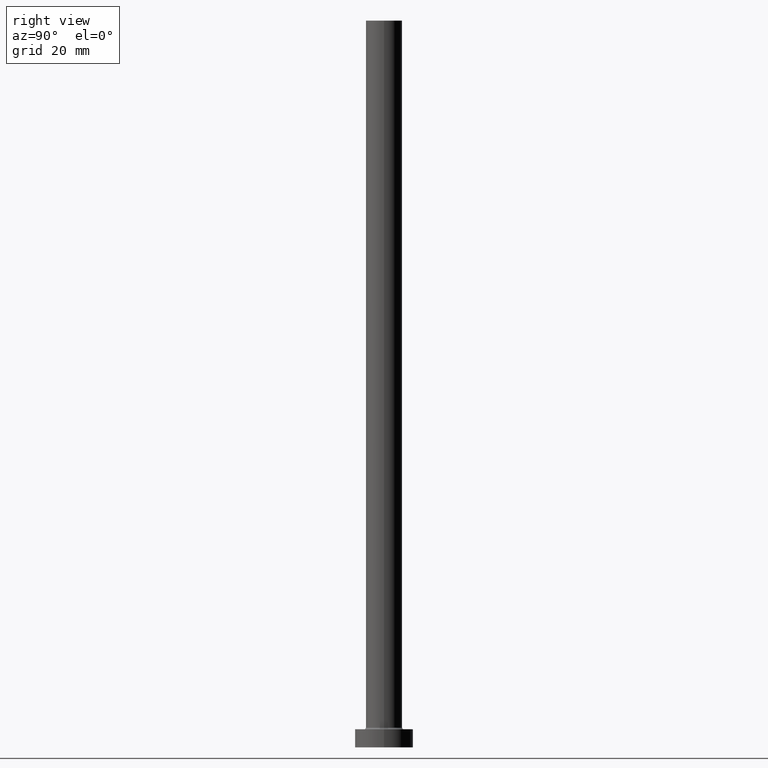
[diagram: clean part render]
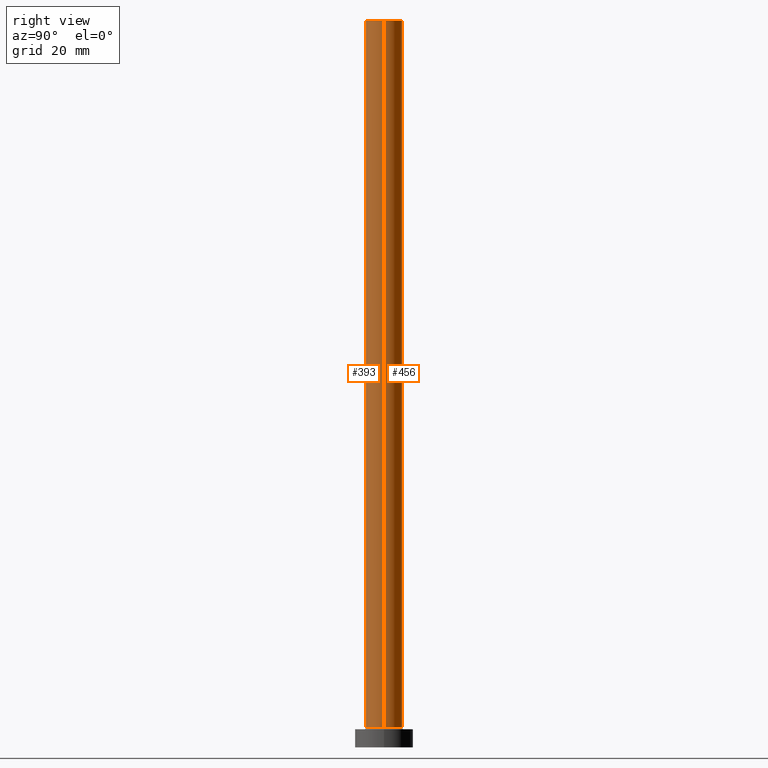
[diagram: same view with one multi-face feature highlighted, each face labeled with its STEP entity id]
A machine part, right view. The highlighted faces form ONE feature: a constant-radius fillet chain: 2 tangent blend faces with common blend radius 5 mm. The faces share edges in the B-rep.
Their STEP definitions:
[1] entity #456 (Cylinder):
#6 = EDGE_LOOP ( 'NONE', ( #119, #329, #144, #199 ) ) ;
#14 = EDGE_CURVE ( 'NONE', #397, #252, #40, .T. ) ;
#26 = LINE ( 'NONE', #163, #302 ) ;
#40 = CIRCLE ( 'NONE', #123, 5.000000000000000000 ) ;
#99 = VECTOR ( 'NONE', #368, 1000.000000000000000 ) ;
#119 = ORIENTED_EDGE ( 'NONE', *, *, #14, .F. ) ;
#123 = AXIS2_PLACEMENT_3D ( 'NONE', #128, #406, #409 ) ;
#127 = CARTESIAN_POINT ( 'NONE',  ( 0.000000000000000000, 0.000000000000000000, 200.0000000000000000 ) ) ;
#128 = CARTESIAN_POINT ( 'NONE',  ( 0.000000000000000000, 0.000000000000000000, 200.0000000000000000 ) ) ;
#129 = DIRECTION ( 'NONE',  ( -0.000000000000000000, -0.000000000000000000, -1.000000000000000000 ) ) ;
#136 = EDGE_CURVE ( 'NONE', #397, #427, #26, .T. ) ;
#144 = ORIENTED_EDGE ( 'NONE', *, *, #237, .T. ) ;
#145 = CARTESIAN_POINT ( 'NONE',  ( -5.000000000000000000, 0.000000000000000000, 200.0000000000000000 ) ) ;
#159 = CARTESIAN_POINT ( 'NONE',  ( 5.000000000000000000, 6.123233995736766282E-16, 5.500000000000005329 ) ) ;
#163 = CARTESIAN_POINT ( 'NONE',  ( 5.000000000000000000, 6.123233995736766282E-16, 200.0000000000000000 ) ) ;
#188 = CARTESIAN_POINT ( 'NONE',  ( 5.000000000000000000, 6.123233995736766282E-16, 200.0000000000000000 ) ) ;
#191 = AXIS2_PLACEMENT_3D ( 'NONE', #248, #328, #430 ) ;
#195 = CYLINDRICAL_SURFACE ( 'NONE', #379, 5.000000000000000000 ) ;
#199 = ORIENTED_EDGE ( 'NONE', *, *, #293, .F. ) ;
#236 = DIRECTION ( 'NONE',  ( -0.000000000000000000, -0.000000000000000000, -1.000000000000000000 ) ) ;
#237 = EDGE_CURVE ( 'NONE', #427, #246, #279, .T. ) ;
#246 = VERTEX_POINT ( 'NONE', #330 ) ;
#248 = CARTESIAN_POINT ( 'NONE',  ( 0.000000000000000000, 0.000000000000000000, 5.500000000000005329 ) ) ;
#252 = VERTEX_POINT ( 'NONE', #253 ) ;
#253 = CARTESIAN_POINT ( 'NONE',  ( -5.000000000000000000, 0.000000000000000000, 200.0000000000000000 ) ) ;
#269 = DIRECTION ( 'NONE',  ( -1.000000000000000000, 0.000000000000000000, 0.000000000000000000 ) ) ;
#279 = CIRCLE ( 'NONE', #191, 5.000000000000000000 ) ;
#293 = EDGE_CURVE ( 'NONE', #252, #246, #433, .T. ) ;
#302 = VECTOR ( 'NONE', #236, 1000.000000000000000 ) ;
#328 = DIRECTION ( 'NONE',  ( 0.000000000000000000, 0.000000000000000000, 1.000000000000000000 ) ) ;
#329 = ORIENTED_EDGE ( 'NONE', *, *, #136, .T. ) ;
#330 = CARTESIAN_POINT ( 'NONE',  ( -5.000000000000000000, 0.000000000000000000, 5.500000000000005329 ) ) ;
#368 = DIRECTION ( 'NONE',  ( -0.000000000000000000, -0.000000000000000000, -1.000000000000000000 ) ) ;
#379 = AXIS2_PLACEMENT_3D ( 'NONE', #127, #129, #269 ) ;
#397 = VERTEX_POINT ( 'NONE', #188 ) ;
#406 = DIRECTION ( 'NONE',  ( 0.000000000000000000, 0.000000000000000000, 1.000000000000000000 ) ) ;
#409 = DIRECTION ( 'NONE',  ( 1.000000000000000000, 0.000000000000000000, 0.000000000000000000 ) ) ;
#427 = VERTEX_POINT ( 'NONE', #159 ) ;
#430 = DIRECTION ( 'NONE',  ( 1.000000000000000000, 0.000000000000000000, 0.000000000000000000 ) ) ;
#433 = LINE ( 'NONE', #145, #99 ) ;
#448 = FACE_OUTER_BOUND ( 'NONE', #6, .T. ) ;
#456 = ADVANCED_FACE ( 'NONE', ( #448 ), #195, .T. ) ;
[2] entity #393 (Cylinder):
#26 = LINE ( 'NONE', #163, #302 ) ;
#28 = EDGE_CURVE ( 'NONE', #252, #397, #157, .T. ) ;
#33 = AXIS2_PLACEMENT_3D ( 'NONE', #307, #345, #56 ) ;
#34 = ORIENTED_EDGE ( 'NONE', *, *, #28, .F. ) ;
#35 = ORIENTED_EDGE ( 'NONE', *, *, #421, .T. ) ;
#50 = AXIS2_PLACEMENT_3D ( 'NONE', #231, #162, #270 ) ;
#54 = DIRECTION ( 'NONE',  ( -1.000000000000000000, 0.000000000000000000, 0.000000000000000000 ) ) ;
#56 = DIRECTION ( 'NONE',  ( 1.000000000000000000, 0.000000000000000000, 0.000000000000000000 ) ) ;
#95 = CYLINDRICAL_SURFACE ( 'NONE', #214, 5.000000000000000000 ) ;
#99 = VECTOR ( 'NONE', #368, 1000.000000000000000 ) ;
#110 = ORIENTED_EDGE ( 'NONE', *, *, #293, .T. ) ;
#136 = EDGE_CURVE ( 'NONE', #397, #427, #26, .T. ) ;
#145 = CARTESIAN_POINT ( 'NONE',  ( -5.000000000000000000, 0.000000000000000000, 200.0000000000000000 ) ) ;
#157 = CIRCLE ( 'NONE', #50, 5.000000000000000000 ) ;
#159 = CARTESIAN_POINT ( 'NONE',  ( 5.000000000000000000, 6.123233995736766282E-16, 5.500000000000005329 ) ) ;
#162 = DIRECTION ( 'NONE',  ( 0.000000000000000000, 0.000000000000000000, 1.000000000000000000 ) ) ;
#163 = CARTESIAN_POINT ( 'NONE',  ( 5.000000000000000000, 6.123233995736766282E-16, 200.0000000000000000 ) ) ;
#188 = CARTESIAN_POINT ( 'NONE',  ( 5.000000000000000000, 6.123233995736766282E-16, 200.0000000000000000 ) ) ;
#214 = AXIS2_PLACEMENT_3D ( 'NONE', #230, #299, #54 ) ;
#227 = FACE_OUTER_BOUND ( 'NONE', #333, .T. ) ;
#230 = CARTESIAN_POINT ( 'NONE',  ( 0.000000000000000000, 0.000000000000000000, 200.0000000000000000 ) ) ;
#231 = CARTESIAN_POINT ( 'NONE',  ( 0.000000000000000000, 0.000000000000000000, 200.0000000000000000 ) ) ;
#233 = CIRCLE ( 'NONE', #33, 5.000000000000000000 ) ;
#236 = DIRECTION ( 'NONE',  ( -0.000000000000000000, -0.000000000000000000, -1.000000000000000000 ) ) ;
#246 = VERTEX_POINT ( 'NONE', #330 ) ;
#252 = VERTEX_POINT ( 'NONE', #253 ) ;
#253 = CARTESIAN_POINT ( 'NONE',  ( -5.000000000000000000, 0.000000000000000000, 200.0000000000000000 ) ) ;
#270 = DIRECTION ( 'NONE',  ( 1.000000000000000000, 0.000000000000000000, 0.000000000000000000 ) ) ;
#293 = EDGE_CURVE ( 'NONE', #252, #246, #433, .T. ) ;
#299 = DIRECTION ( 'NONE',  ( -0.000000000000000000, -0.000000000000000000, -1.000000000000000000 ) ) ;
#302 = VECTOR ( 'NONE', #236, 1000.000000000000000 ) ;
#307 = CARTESIAN_POINT ( 'NONE',  ( 0.000000000000000000, 0.000000000000000000, 5.500000000000005329 ) ) ;
#330 = CARTESIAN_POINT ( 'NONE',  ( -5.000000000000000000, 0.000000000000000000, 5.500000000000005329 ) ) ;
#333 = EDGE_LOOP ( 'NONE', ( #364, #34, #110, #35 ) ) ;
#345 = DIRECTION ( 'NONE',  ( 0.000000000000000000, 0.000000000000000000, 1.000000000000000000 ) ) ;
#364 = ORIENTED_EDGE ( 'NONE', *, *, #136, .F. ) ;
#368 = DIRECTION ( 'NONE',  ( -0.000000000000000000, -0.000000000000000000, -1.000000000000000000 ) ) ;
#393 = ADVANCED_FACE ( 'NONE', ( #227 ), #95, .T. ) ;
#397 = VERTEX_POINT ( 'NONE', #188 ) ;
#421 = EDGE_CURVE ( 'NONE', #246, #427, #233, .T. ) ;
#427 = VERTEX_POINT ( 'NONE', #159 ) ;
#433 = LINE ( 'NONE', #145, #99 ) ;